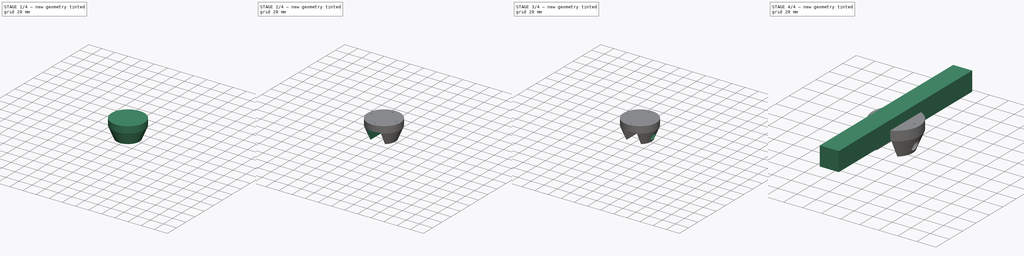
[diagram: build sequence overview — one tinted view per stage of 4, left to right]
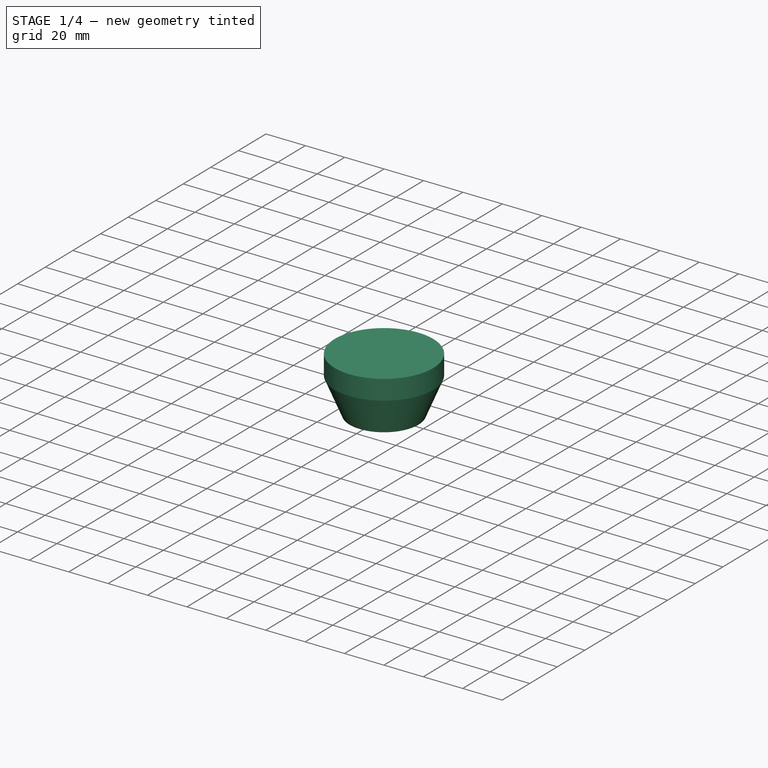
[diagram: stage 1 of 4 — iso view after this stage's code; geometry added in this stage tinted green]
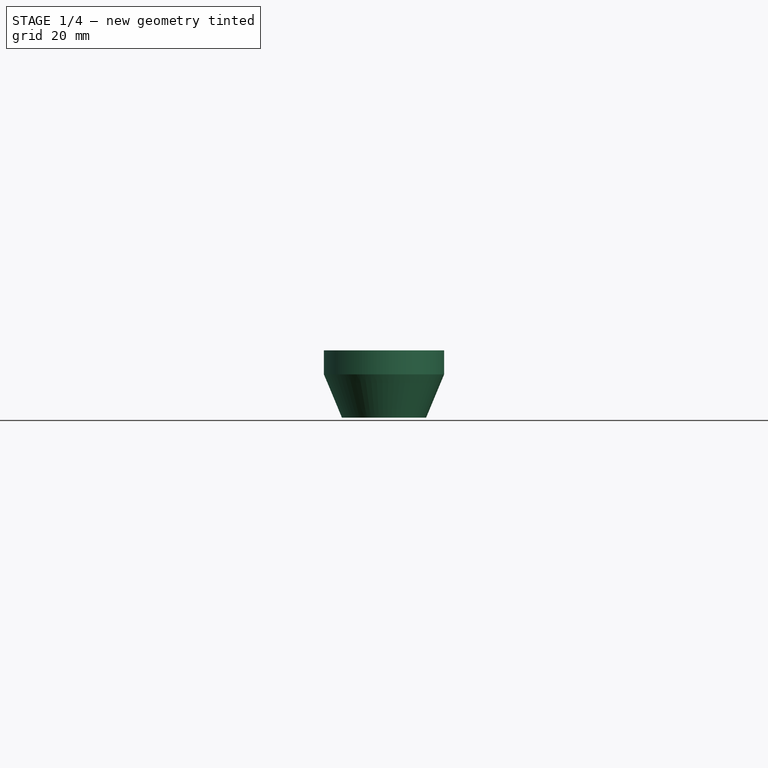
[diagram: stage 1 of 4 — front view after this stage's code; geometry added in this stage tinted green]
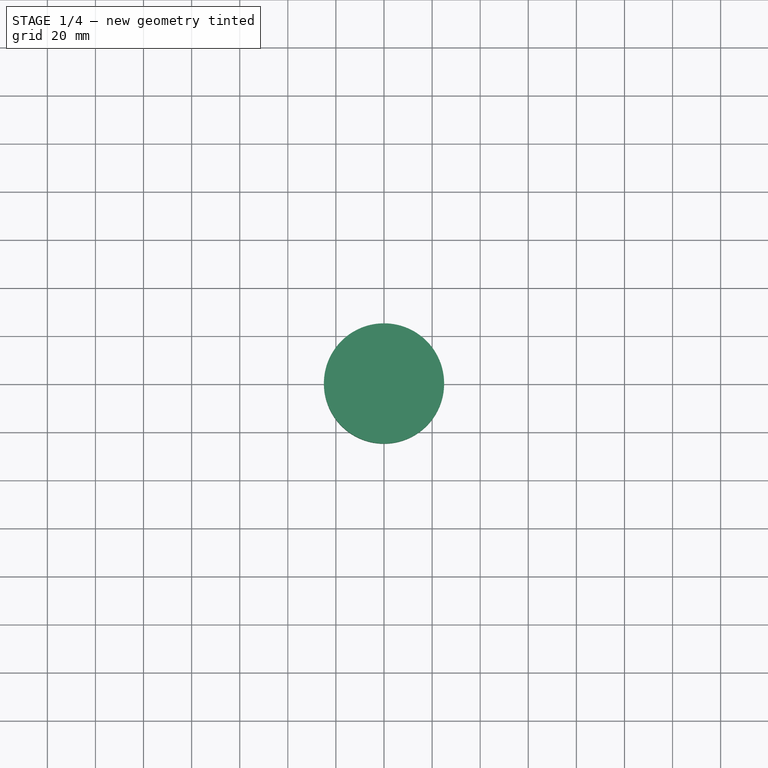
[diagram: stage 1 of 4 — top view after this stage's code; geometry added in this stage tinted green]
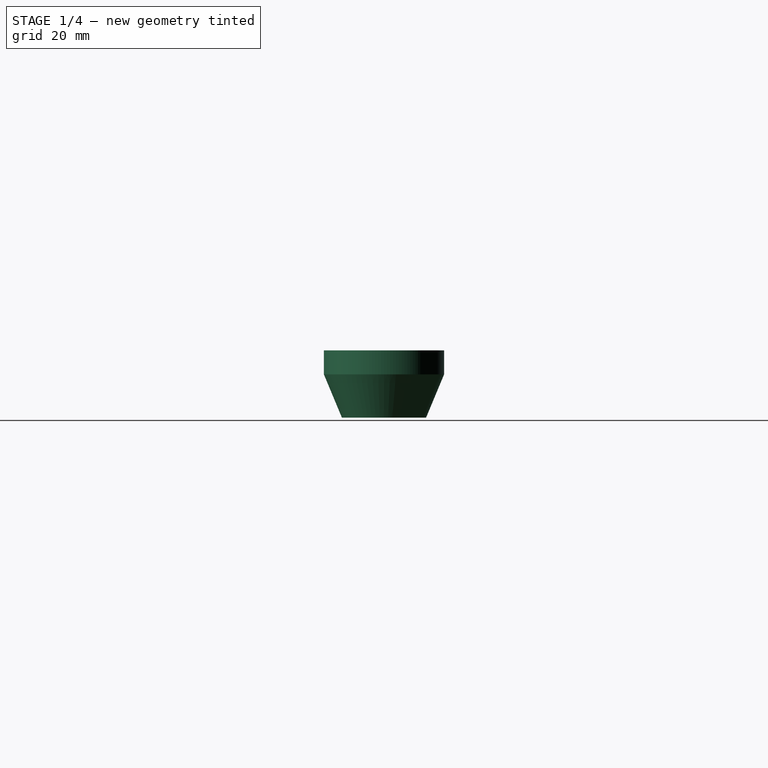
[diagram: stage 1 of 4 — right view after this stage's code; geometry added in this stage tinted green]
FCSTD DOCUMENT  (FreeCAD 0.21R33771 (Git))
Label: keyboard_chair_attachment_rev1
License: All rights reserved
LicenseURL: https://en.wikipedia.org/wiki/All_rights_reserved
objects: Sketcher::SketchObject×10, PartDesign::Plane×8, PartDesign::CoordinateSystem×6, PartDesign::Pocket×6, App::DocumentObjectGroup×3, App::Part×3, PartDesign::Pad×2, PartDesign::Body×2, App::Link×2, App::FeaturePython×1, PartDesign::AdditiveLoft×1
note: 44 computed .brp shape members not serialized (recipe doc carries the construction recipe); baked Part::Feature solids carry a one-line shape summary decoded from their .brp

FEATURE [PartDesign::Body] Extruded_Bar_Body  label="Extruded Bar Body"
  Group = -> [Sketch,Pad]
  Origin = -> Origin002
  Tip = -> Pad
FEATURE [PartDesign::CoordinateSystem] LCS_003
  AttacherType = Attacher::AttachEngine3D
  MapMode = 2
  Support = -> [X_Axis004]
FEATURE [PartDesign::Plane] DatumPlane  label="Keyboard Mount Top"
  Length = 60
  MapMode = 5
  ResizeMode = 0
  Support = -> [XY_Plane004]
  Width = 60
FEATURE [PartDesign::Plane] DatumPlane001  label="Keyboard Mount Mid"
  AttachmentOffset = pos=(0,0,-10) rot=(0,0,1;0rad)
  Length = 60
  MapMode = 5
  Placement = pos=(0,0,-10) rot=(0,0,1;0rad)
  ResizeMode = 0
  Support = -> [DatumPlane]
  Width = 60
FEATURE [PartDesign::Plane] DatumPlane002  label="Keyboard Mount Bottom"
  AttachmentOffset = pos=(0,0,-18) rot=(0,0,1;0rad)
  Length = 60
  MapMode = 5
  Placement = pos=(0,0,-28) rot=(0,0,1;0rad)
  ResizeMode = 0
  Support = -> [DatumPlane001]
  Width = 60
FEATURE [Sketcher::SketchObject] Sketch001
  FullyConstrained = true
  MapMode = 5
  Support = -> [DatumPlane]
  sketch-geometry (1):
    g0: Circle CenterX=0 CenterY=0 CenterZ=0 NormalX=0 NormalY=0 NormalZ=1 AngleXU=0 Radius=25
  constraints (2):
    c: Coincident(g0,g-1)
    c: Diameter(g0) = 50
FEATURE [PartDesign::Pad] Pad001  label="Keyboard Mount Upper Section"
  Direction = (0,0,1)
  Length = 10
  Length2 = 10
  Profile = -> Sketch001
  ReferenceAxis = -> Sketch001 [N_Axis]
  Type = 3
  UpToFace = -> DatumPlane001
FEATURE [Sketcher::SketchObject] Sketch002
  FullyConstrained = true
  MapMode = 5
  Placement = pos=(0,0,-10) rot=(0,0,1;0rad)
  Support = -> [DatumPlane001]
  expr: Constraints[1] = 50
  sketch-geometry (1):
    g0: Circle CenterX=0 CenterY=0 CenterZ=0 NormalX=0 NormalY=0 NormalZ=1 AngleXU=0 Radius=25
  constraints (2):
    c: Coincident(g0,g-1)
    c: Diameter(g0) = 50
FEATURE [Sketcher::SketchObject] Sketch003
  FullyConstrained = true
  MapMode = 5
  Placement = pos=(0,0,-28) rot=(0,0,1;0rad)
  Support = -> [DatumPlane002]
  sketch-geometry (1):
    g0: Circle CenterX=0 CenterY=0 CenterZ=0 NormalX=0 NormalY=0 NormalZ=1 AngleXU=0 Radius=17.5
  constraints (2):
    c: Coincident(g0,g-1)
    c: Diameter(g0) = 35
FEATURE [PartDesign::AdditiveLoft] AdditiveLoft  label="Keyboard Mount Lower Section"
  BaseFeature = -> Pad001
  Closed = false
  Profile = -> Sketch003
  Ruled = false
  Sections = -> [Sketch002]
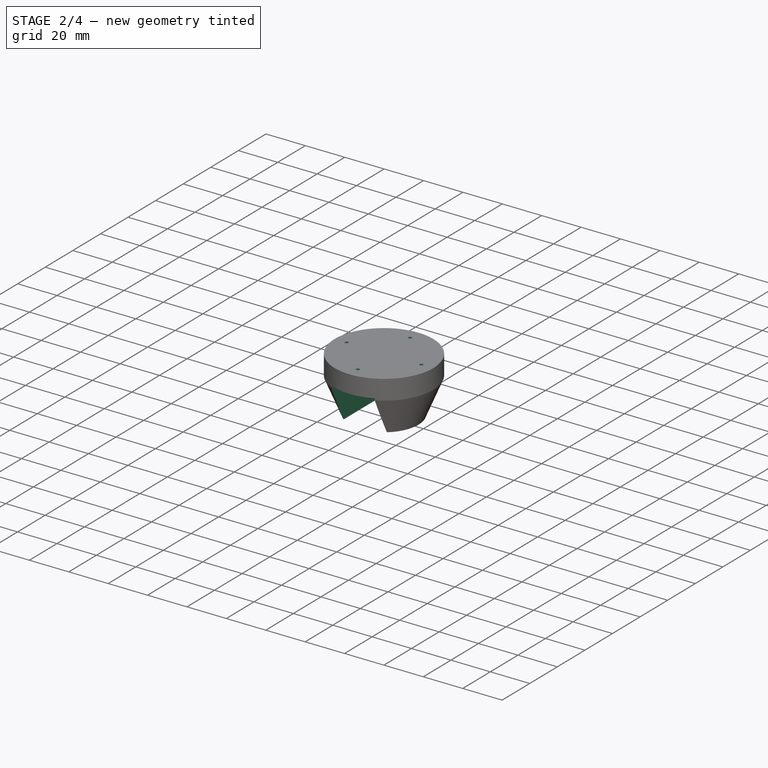
[diagram: stage 2 of 4 — iso view after this stage's code; geometry added in this stage tinted green]
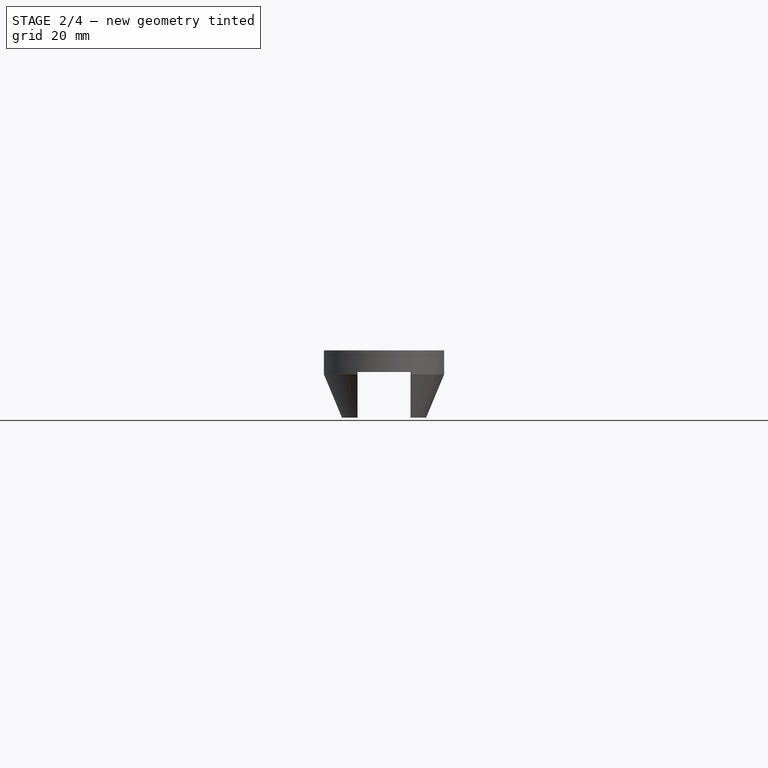
[diagram: stage 2 of 4 — front view after this stage's code; geometry added in this stage tinted green]
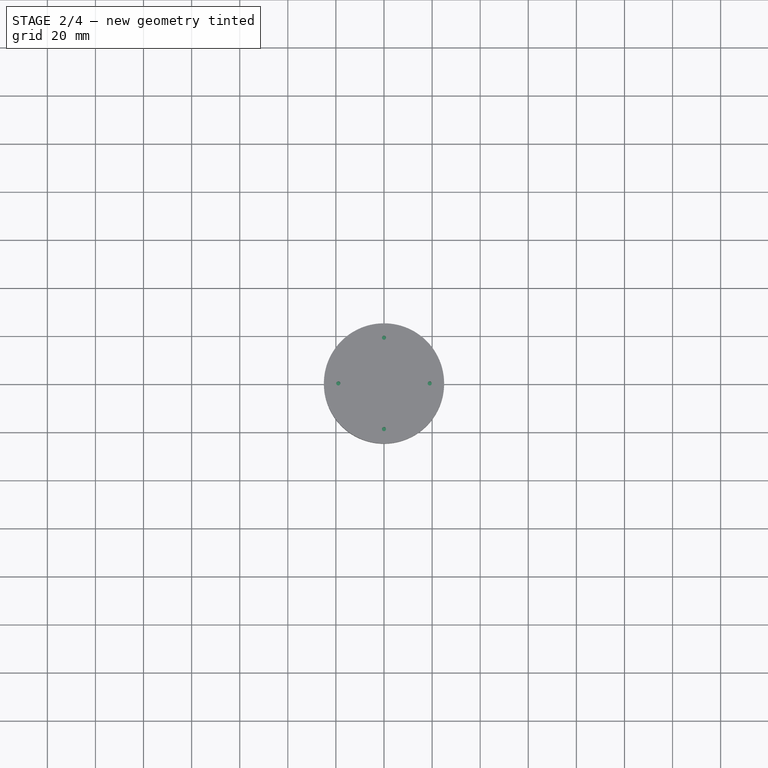
[diagram: stage 2 of 4 — top view after this stage's code; geometry added in this stage tinted green]
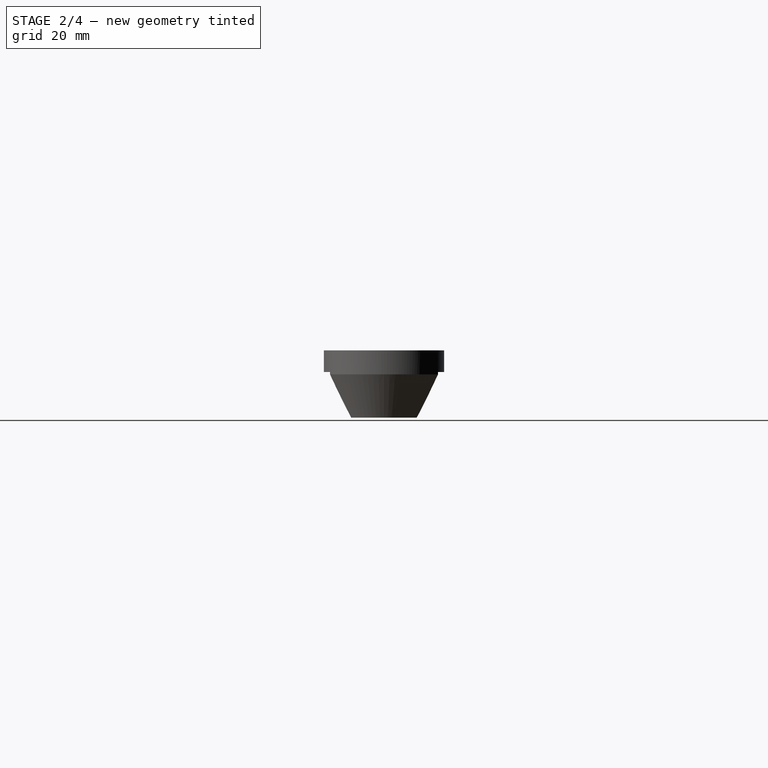
[diagram: stage 2 of 4 — right view after this stage's code; geometry added in this stage tinted green]
FEATURE [PartDesign::Plane] DatumPlane003  label="Keyboard Mount Tenting Puck Hole Depth"
  AttachmentOffset = pos=(0,0,-8) rot=(0,0,1;0rad)
  Length = 60
  MapMode = 5
  Placement = pos=(0,0,-8) rot=(0,0,1;0rad)
  ResizeMode = 0
  Support = -> [DatumPlane]
  Width = 60
FEATURE [Sketcher::SketchObject] Sketch004
  FullyConstrained = true
  MapMode = 5
  Support = -> [DatumPlane]
  sketch-geometry (5):
    g0: Circle CenterX=0 CenterY=0 CenterZ=0 NormalX=0 NormalY=0 NormalZ=1 AngleXU=0 Radius=19
    g1: Circle CenterX=0 CenterY=19 CenterZ=0 NormalX=0 NormalY=0 NormalZ=1 AngleXU=0 Radius=0.85
    g2: Circle CenterX=19 CenterY=0 CenterZ=0 NormalX=0 NormalY=0 NormalZ=1 AngleXU=0 Radius=0.85
    g3: Circle CenterX=0 CenterY=-19 CenterZ=0 NormalX=0 NormalY=0 NormalZ=1 AngleXU=0 Radius=0.85
    g4: Circle CenterX=-19 CenterY=0 CenterZ=0 NormalX=0 NormalY=0 NormalZ=1 AngleXU=0 Radius=0.85
  constraints (14):
    c: Coincident(g0,g-1)
    c: PointOnObject(g1,g0)
    c: PointOnObject(g2,g0)
    c: PointOnObject(g3,g0)
    c: PointOnObject(g4,g0)
    c: PointOnObject(g4,g-1)
    c: PointOnObject(g1,g-2)
    c: PointOnObject(g2,g-1)
    c: PointOnObject(g3,g-2)
    c: Equal(g1,g2)
    c: Equal(g2,g3)
    c: Equal(g3,g4)
    c: Diameter(g1) = 1.7
    c: Diameter(g0) = 38
FEATURE [PartDesign::Pocket] Pocket  label="Keyboard Mount Tenting Puck Holes"
  BaseFeature = -> AdditiveLoft
  Direction = (0,0,-1)
  Length = 0
  Length2 = 5
  Profile = -> Sketch004
  ReferenceAxis = -> Sketch004 [N_Axis]
  Type = 3
  UpToFace = -> DatumPlane003 [Plane]
FEATURE [Sketcher::SketchObject] Sketch005
  FullyConstrained = true
  MapMode = 5
  Placement = pos=(0,0,0) rot=(1,0,0;1.5708rad)
  Support = -> [XZ_Plane004]
  expr: .Constraints.height = Variables.extruded_bar_height + 2
  expr: .Constraints.width = Variables.extruded_bar_width + 2
  sketch-geometry (5):
    g0: LineSegment StartX=-11 StartY=-31 StartZ=0 EndX=-11 EndY=-9 EndZ=0
    g1: LineSegment StartX=-11 StartY=-9 StartZ=0 EndX=11 EndY=-9 EndZ=0
    g2: LineSegment StartX=11 StartY=-9 StartZ=0 EndX=11 EndY=-31 EndZ=0
    g3: LineSegment StartX=11 StartY=-31 StartZ=0 EndX=-11 EndY=-31 EndZ=0
    g4: GeomPoint X=0 Y=-20 Z=0
  constraints (13):
    c: Coincident(g0,g1)
    c: Coincident(g1,g2)
    c: Coincident(g2,g3)
    c: Coincident(g3,g0)
    c: Horizontal(g1)
    c: Horizontal(g3)
    c: Vertical(g0)
    c: Vertical(g2)
    c: Symmetric(g1,g0,g4)
    c: PointOnObject(g4,g-2)
    c: DistanceX(g1,g1) = 22  'width'
    c: DistanceY(g2,g2) = 22  'height'
    c: DistanceY(g4,g-1) = 20  'offset'
FEATURE [PartDesign::Pocket] Pocket001  label="Keyboard Mount Bar Cutout"
  BaseFeature = -> Pocket
  Direction = (0,1,2e-16)
  Length = 5
  Length2 = 5
  Midplane = true
  Profile = -> Sketch005
  ReferenceAxis = -> Sketch005 [N_Axis]
  Type = 1
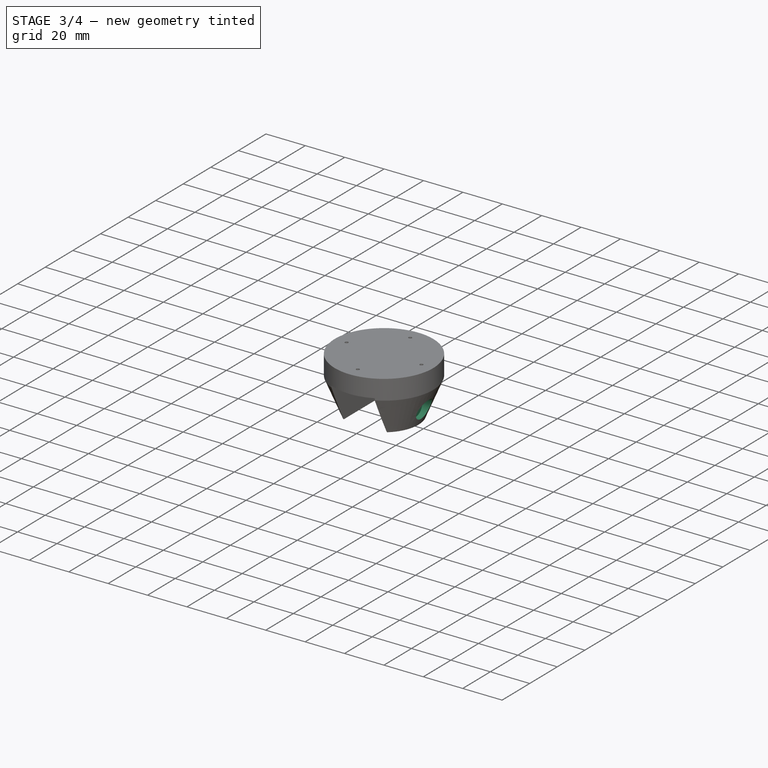
[diagram: stage 3 of 4 — iso view after this stage's code; geometry added in this stage tinted green]
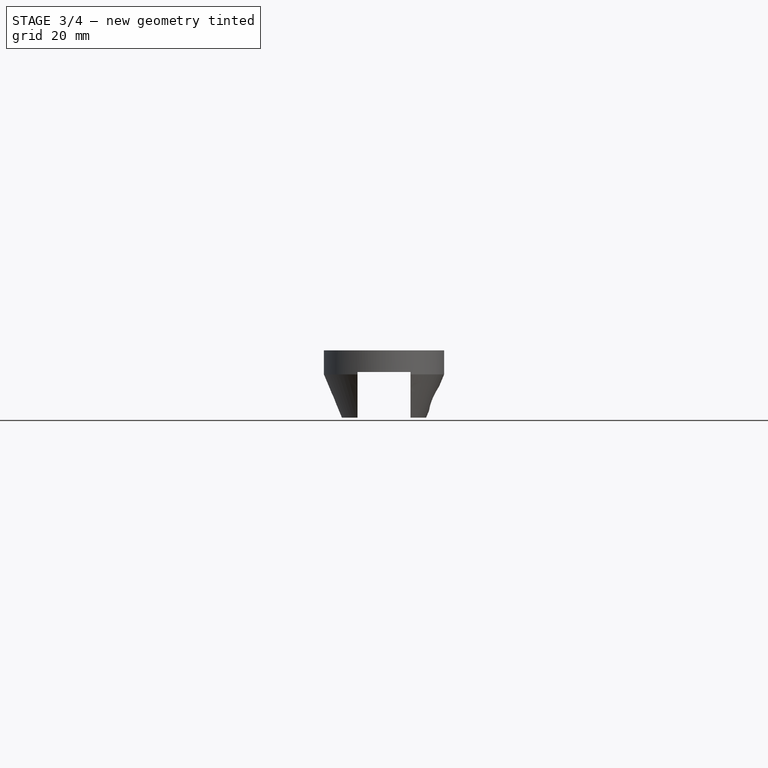
[diagram: stage 3 of 4 — front view after this stage's code; geometry added in this stage tinted green]
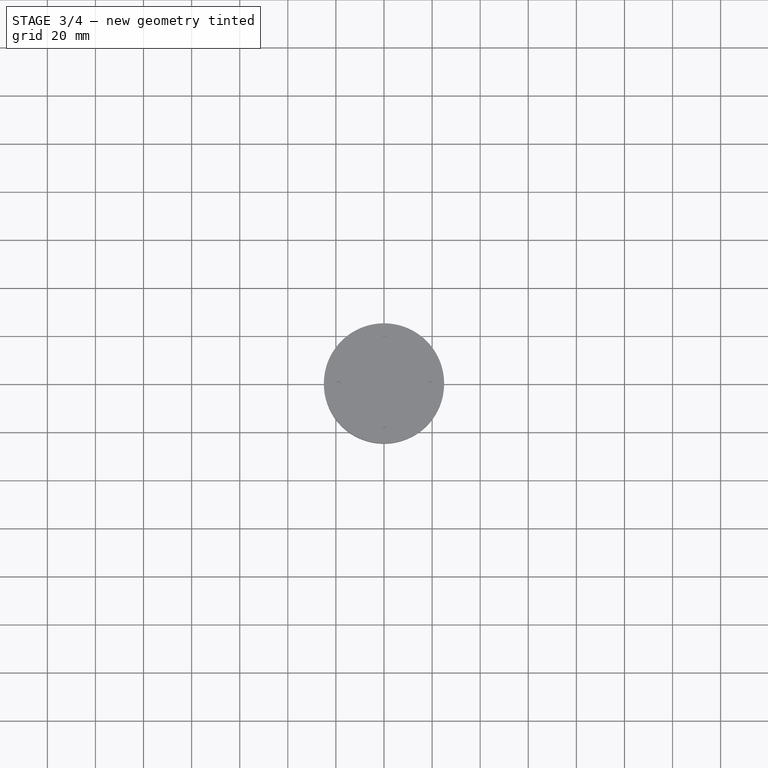
[diagram: stage 3 of 4 — top view after this stage's code; geometry added in this stage tinted green]
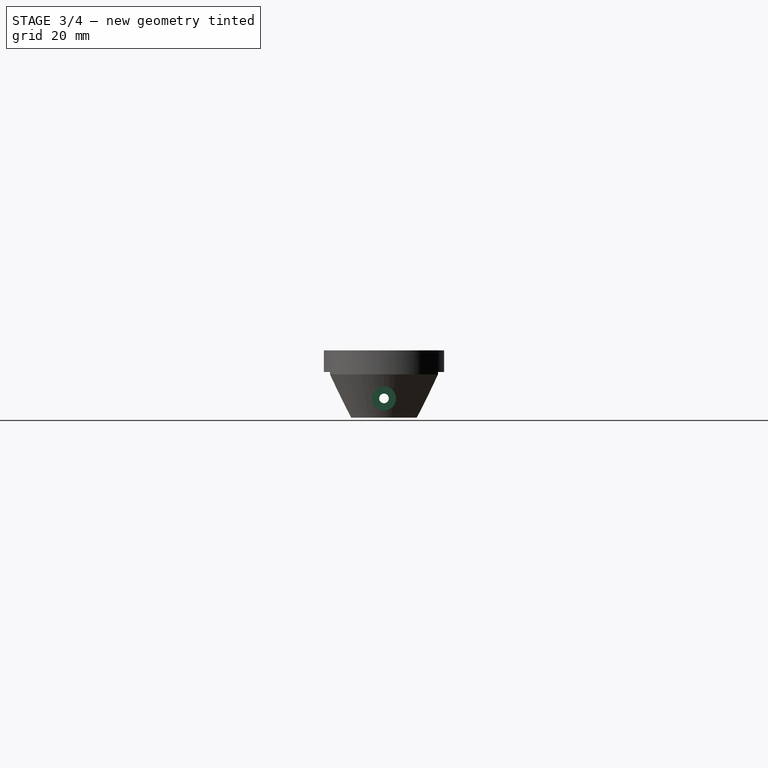
[diagram: stage 3 of 4 — right view after this stage's code; geometry added in this stage tinted green]
FEATURE [PartDesign::Plane] DatumPlane004  label="Keyboard Mount Bar Side Right"
  AttachmentOffset = pos=(0,0,11) rot=(0,0,1;0rad)
  Length = 60.2956
  MapMode = 5
  Placement = pos=(11,-2.4e-15,2.4e-15) rot=(0.57735,0.57735,0.57735;2.0944rad)
  ResizeMode = 0
  Support = -> [YZ_Plane004]
  Width = 63.2956
  expr: .AttachmentOffset.Base.z = Sketch005.Constraints.width / 2
FEATURE [Sketcher::SketchObject] Sketch006
  FullyConstrained = true
  MapMode = 5
  Placement = pos=(11,-2.4e-15,2.4e-15) rot=(0.57735,0.57735,0.57735;2.0944rad)
  Support = -> [DatumPlane004]
  expr: .Constraints.offset = Sketch005.Constraints.offset
  sketch-geometry (1):
    g0: Circle CenterX=0 CenterY=-20 CenterZ=0 NormalX=0 NormalY=0 NormalZ=1 AngleXU=0 Radius=2
  constraints (3):
    c: PointOnObject(g0,g-2)
    c: DistanceY(g0,g-1) = 20  'offset'
    c: Diameter(g0) = 4  'hole_diam'
FEATURE [PartDesign::Pocket] Pocket002  label="Keyboard Mount Bar Screw Cutout Right"
  BaseFeature = -> Pocket001
  Direction = (-1,1e-16,-1e-16)
  Length = 5
  Length2 = 5
  Profile = -> Sketch006
  ReferenceAxis = -> Sketch006 [N_Axis]
  Reversed = true
  Type = 1
FEATURE [PartDesign::Plane] DatumPlane005  label="Keyboard Mount Bar Mount Screw Head Right"
  AttachmentOffset = pos=(0,0,5) rot=(0,0,1;0rad)
  Length = 60.2956
  MapMode = 5
  Placement = pos=(16,-3e-15,3e-15) rot=(0.57735,0.57735,0.57735;2.0944rad)
  ResizeMode = 0
  Support = -> [DatumPlane004]
  Width = 63.2956
FEATURE [Sketcher::SketchObject] Sketch007
  FullyConstrained = true
  MapMode = 5
  Placement = pos=(16,-3e-15,3e-15) rot=(0.57735,0.57735,0.57735;2.0944rad)
  Support = -> [DatumPlane005]
  expr: .Constraints.offset = Sketch005.Constraints.offset
  sketch-geometry (1):
    g0: Circle CenterX=0 CenterY=-20 CenterZ=0 NormalX=0 NormalY=0 NormalZ=1 AngleXU=0 Radius=5
  constraints (3):
    c: PointOnObject(g0,g-2)
    c: DistanceY(g0,g-1) = 20  'offset'
    c: Diameter(g0) = 10  'hole_diam'
FEATURE [PartDesign::Pocket] Pocket003  label="Keyboard Mount Bar Screw Head Cutout Right"
  BaseFeature = -> Pocket002
  Direction = (-1,0,0)
  Length = 5
  Length2 = 5
  Profile = -> Sketch007
  ReferenceAxis = -> Sketch007 [N_Axis]
  Reversed = true
  Type = 1
FEATURE [PartDesign::CoordinateSystem] Local_CS  label="Keyboard Mount Body Bar"
  AttacherType = Attacher::AttachEngine3D
  AttachmentOffset = pos=(0,0,-20) rot=(0,0,1;0rad)
  MapMode = 5
  Placement = pos=(0,0,-20) rot=(0,0,1;0rad)
  Support = -> [LCS_003]
  expr: .AttachmentOffset.Base.z = -Sketch005.Constraints.offset
FEATURE [PartDesign::CoordinateSystem] Keyboard_Mount_Bar  label="Keyboard Mount Bar"
  AttacherType = Attacher::AttachEngine3D
  MapMode = 5
  Placement = pos=(0,0,-20) rot=(0,0,1;0rad)
  Support = -> [Local_CS]
FEATURE [PartDesign::CoordinateSystem] LCS_1  label="Extruded Bar Keyboard"
  AttacherType = Attacher::AttachEngine3D
  AttachmentOffset = pos=(0,80,0) rot=(0,0,1;0rad)
  MapMode = 5
  Placement = pos=(0,80,0) rot=(0,0,1;0rad)
  Support = -> [LCS_0]
FEATURE [App::Part] Extruded_Bar  label="Extruded Bar"
  Group = -> [LCS_0,Extruded_Bar_Body,LCS_1]
  Origin = -> Origin001
FEATURE [App::Link] Extruded_Bar_Ass  label="Extruded Bar Ass"
  AttachedBy = #LCS_0
  AttachedTo = Parent Assembly#LCS_Origin
  LinkedObject = -> Extruded_Bar
  SolverId = Asm4EE
  expr: Placement = LCS_Origin.Placement * AttachmentOffset * LCS_0.Placement ^ -1
FEATURE [App::Link] Keyboard_Mount_Ass  label="Keyboard Mount Ass"
  AttachedBy = #Keyboard_Mount_Bar
  AttachedTo = Extruded_Bar_Ass#LCS_1
  LinkPlacement = pos=(0,80,20) rot=(0,0,1;0rad)
  LinkedObject = -> Keyboard_Mount
  Placement = pos=(0,80,20) rot=(0,0,1;0rad)
  SolverId = Asm4EE
  expr: Placement = Extruded_Bar_Ass.Placement * LCS_1.Placement * AttachmentOffset * Keyboard_Mount_Bar.Placement ^ -1
FEATURE [App::Part] Assembly
  AssemblyType = Part::Link
  Group = -> [LCS_Origin,Constraints,Variables,Configurations,Extruded_Bar_Ass,Keyboard_Mount_Ass]
  Origin = -> Origin
  Type = Assembly
FEATURE [PartDesign::Plane] DatumPlane006  label="Keyboard Mount Bar Side Left"
  AttachmentOffset = pos=(0,0,-11) rot=(0,0,1;0rad)
  Length = 60.2956
  MapMode = 5
  Placement = pos=(-11,2.4e-15,-2.4e-15) rot=(0.57735,0.57735,0.57735;2.0944rad)
  ResizeMode = 0
  Support = -> [YZ_Plane004]
  Width = 63.2956
  expr: .AttachmentOffset.Base.z = -Sketch005.Constraints.width / 2
FEATURE [PartDesign::Plane] DatumPlane007  label="Keyboard Mount Bar Mount Screw Head Left"
  AttachmentOffset = pos=(0,0,-5) rot=(0,0,1;0rad)
  Length = 60.2956
  MapMode = 5
  Placement = pos=(-16,3e-15,-3e-15) rot=(0.57735,0.57735,0.57735;2.0944rad)
  ResizeMode = 0
  Support = -> [DatumPlane006]
  Width = 63.2956
FEATURE [Sketcher::SketchObject] Sketch008
  FullyConstrained = true
  MapMode = 5
  Placement = pos=(-11,2.4e-15,-2.4e-15) rot=(0.57735,0.57735,0.57735;2.0944rad)
  Support = -> [DatumPlane006]
  expr: Constraints[1] = Sketch006.Constraints.hole_diam
  expr: Constraints[2] = Sketch006.Constraints.offset
  sketch-geometry (1):
    g0: Circle CenterX=0 CenterY=-20 CenterZ=0 NormalX=0 NormalY=0 NormalZ=1 AngleXU=0 Radius=2
  constraints (3):
    c: PointOnObject(g0,g-2)
    c: Diameter(g0) = 4
    c: DistanceY(g0,g-1) = 20
FEATURE [PartDesign::Pocket] Pocket004  label="Keyboard Mount Bar Screw Cutout Left"
  BaseFeature = -> Pocket003
  Direction = (-1,1e-16,-1e-16)
  Length = 5
  Length2 = 5
  Profile = -> Sketch008
  ReferenceAxis = -> Sketch008 [N_Axis]
  Type = 1
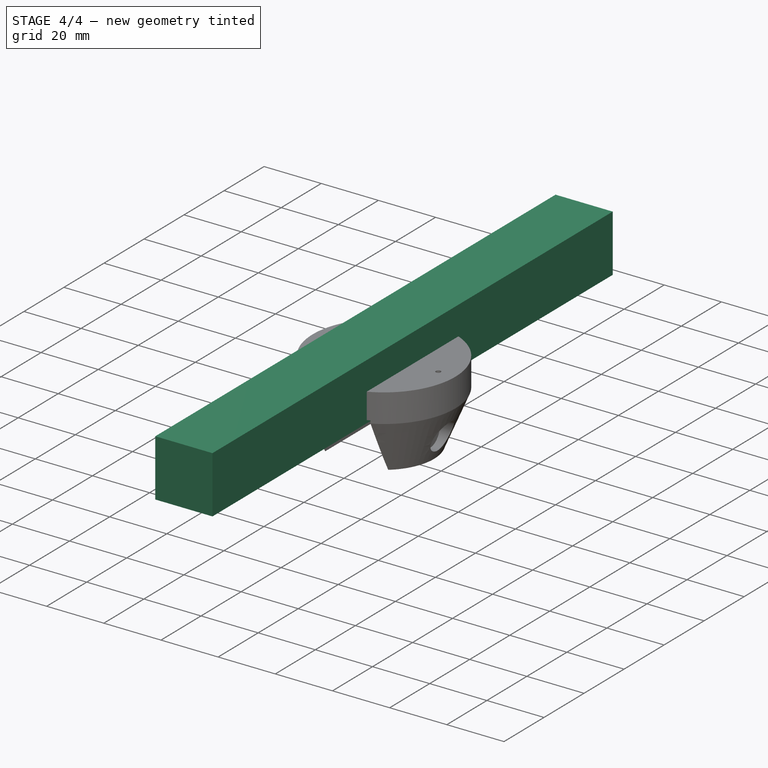
[diagram: stage 4 of 4 — iso view after this stage's code; geometry added in this stage tinted green]
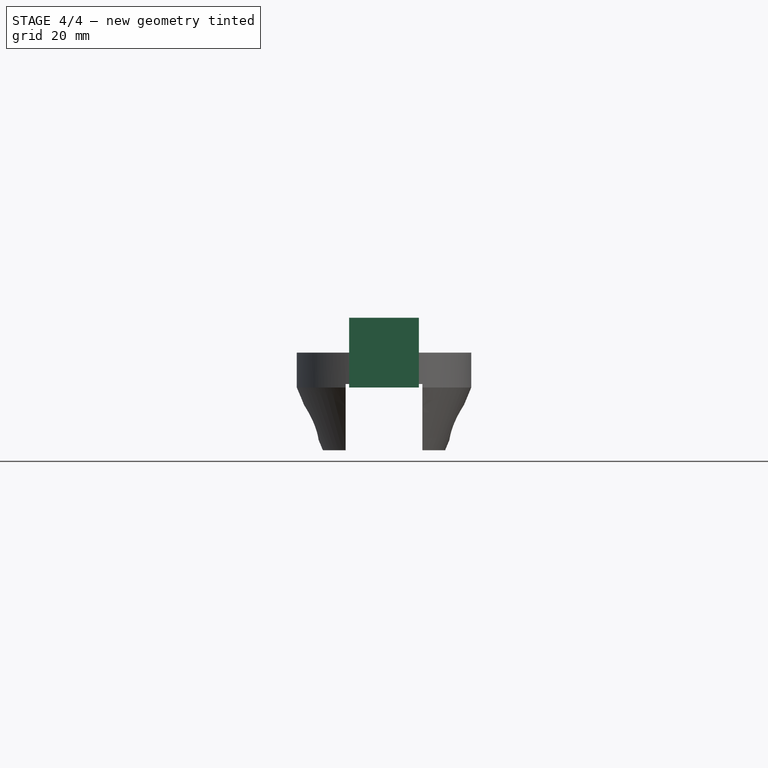
[diagram: stage 4 of 4 — front view after this stage's code; geometry added in this stage tinted green]
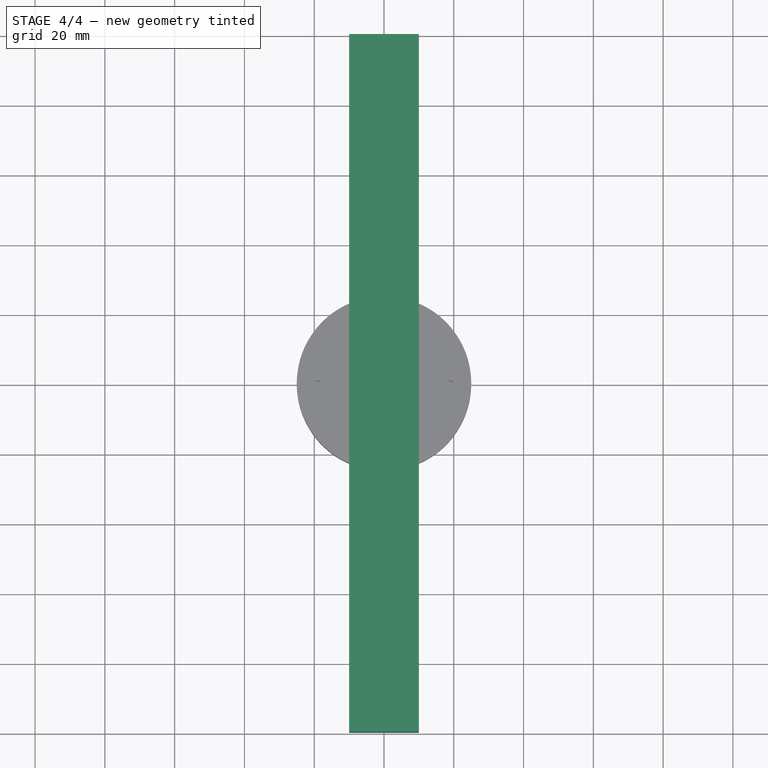
[diagram: stage 4 of 4 — top view after this stage's code; geometry added in this stage tinted green]
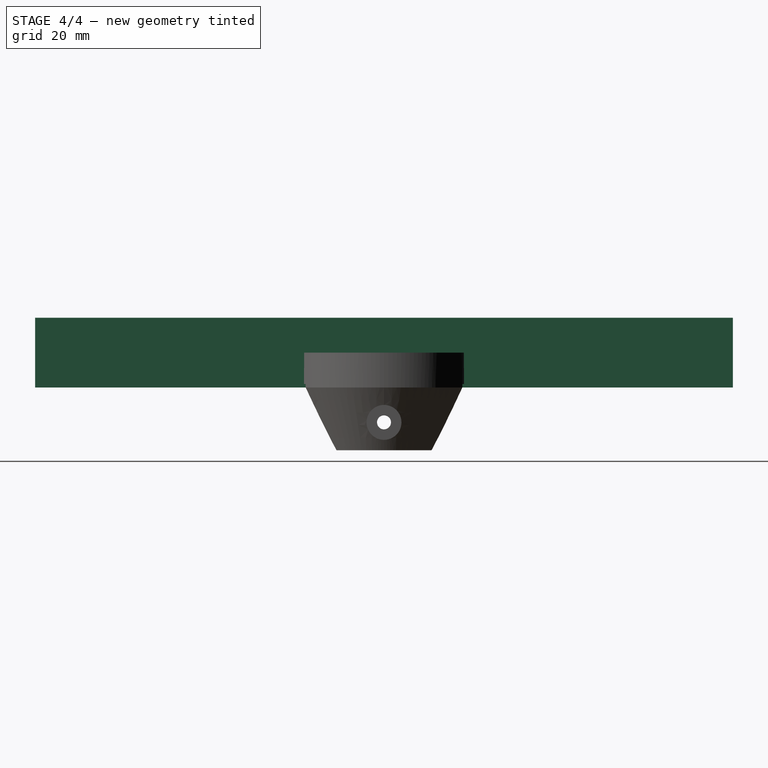
[diagram: stage 4 of 4 — right view after this stage's code; geometry added in this stage tinted green]
FEATURE [PartDesign::CoordinateSystem] LCS_Origin
  AttacherType = Attacher::AttachEngine3D
  MapMode = 2
  Support = -> [X_Axis]
FEATURE [App::DocumentObjectGroup] Constraints
FEATURE [App::FeaturePython] Variables  # WARN: FeaturePython — macro-defined, semantics opaque (R4)
  Type = App::PropertyContainer
  extruded_bar_height = 20
  extruded_bar_length = 200
  extruded_bar_width = 20
FEATURE [App::DocumentObjectGroup] Configurations
FEATURE [PartDesign::CoordinateSystem] LCS_0  label="Extruded Bar Centre"
  AttacherType = Attacher::AttachEngine3D
  MapMode = 2
  Support = -> [X_Axis001]
FEATURE [Sketcher::SketchObject] Sketch  label="Extruded Bar Extrusion"
  FullyConstrained = true
  MapMode = 5
  Placement = pos=(0,0,0) rot=(1,0,0;1.5708rad)
  Support = -> [XZ_Plane002]
  expr: Constraints[10] = Variables.extruded_bar_height
  expr: Constraints[11] = Variables.extruded_bar_width
  sketch-geometry (5):
    g0: LineSegment StartX=-10 StartY=-10 StartZ=0 EndX=-10 EndY=10 EndZ=0
    g1: LineSegment StartX=-10 StartY=10 StartZ=0 EndX=10 EndY=10 EndZ=0
    g2: LineSegment StartX=10 StartY=10 StartZ=0 EndX=10 EndY=-10 EndZ=0
    g3: LineSegment StartX=10 StartY=-10 StartZ=0 EndX=-10 EndY=-10 EndZ=0
    g4: GeomPoint X=0 Y=0 Z=0
  constraints (12):
    c: Coincident(g0,g1)
    c: Coincident(g1,g2)
    c: Coincident(g2,g3)
    c: Coincident(g3,g0)
    c: Horizontal(g1)
    c: Horizontal(g3)
    c: Vertical(g0)
    c: Vertical(g2)
    c: Symmetric(g1,g0,g4)
    c: Coincident(g4,g-1)
    c: DistanceY(g2,g2) = 20
    c: DistanceX(g1,g1) = 20
FEATURE [PartDesign::Pad] Pad  label="Extruded Bar Outer"
  Direction = (0,-1,2e-16)
  Length = 200
  Length2 = 10
  Midplane = true
  Placement = pos=(0,0,0) rot=(1,0,0;1.5708rad)
  Profile = -> Sketch
  ReferenceAxis = -> Sketch [N_Axis]
  Type = 0
  expr: Length = Variables.extruded_bar_length
FEATURE [Sketcher::SketchObject] Sketch009
  FullyConstrained = true
  MapMode = 5
  Placement = pos=(-16,3e-15,-3e-15) rot=(0.57735,0.57735,0.57735;2.0944rad)
  Support = -> [DatumPlane007]
  expr: Constraints[1] = Sketch007.Constraints.offset
  expr: Constraints[2] = Sketch007.Constraints.hole_diam
  sketch-geometry (1):
    g0: Circle CenterX=0 CenterY=-20 CenterZ=0 NormalX=0 NormalY=0 NormalZ=1 AngleXU=0 Radius=5
  constraints (3):
    c: PointOnObject(g0,g-2)
    c: DistanceY(g0,g-1) = 20
    c: Diameter(g0) = 10
FEATURE [PartDesign::Pocket] Pocket005  label="Keyboard Mount Bar Screw Head Cutout Left"
  BaseFeature = -> Pocket004
  Direction = (-1,0,0)
  Length = 0
  Length2 = 5
  Profile = -> Sketch009
  ReferenceAxis = -> Sketch009 [N_Axis]
  Type = 1
FEATURE [PartDesign::Body] Keyboard_Mount_Body  label="Keyboard Mount Body"
  Group = -> [LCS_003,DatumPlane,DatumPlane001,DatumPlane002,Sketch001,Pad001,Sketch002,Sketch003,AdditiveLoft,DatumPlane003,Sketch004,Pocket,Sketch005,Pocket001,DatumPlane004,Sketch006,Pocket002,DatumPlane005,Sketch007,Pocket003,Local_CS,DatumPlane006,Sketch008,Pocket004,DatumPlane007,Sketch009,Pocket005]
  Origin = -> Origin004
  Tip = -> Pocket005
FEATURE [App::Part] Keyboard_Mount  label="Keyboard Mount"
  Group = -> [Keyboard_Mount_Body,Keyboard_Mount_Bar]
  Origin = -> Origin003
FEATURE [App::DocumentObjectGroup] Parts
  Group = -> [Extruded_Bar,Keyboard_Mount]
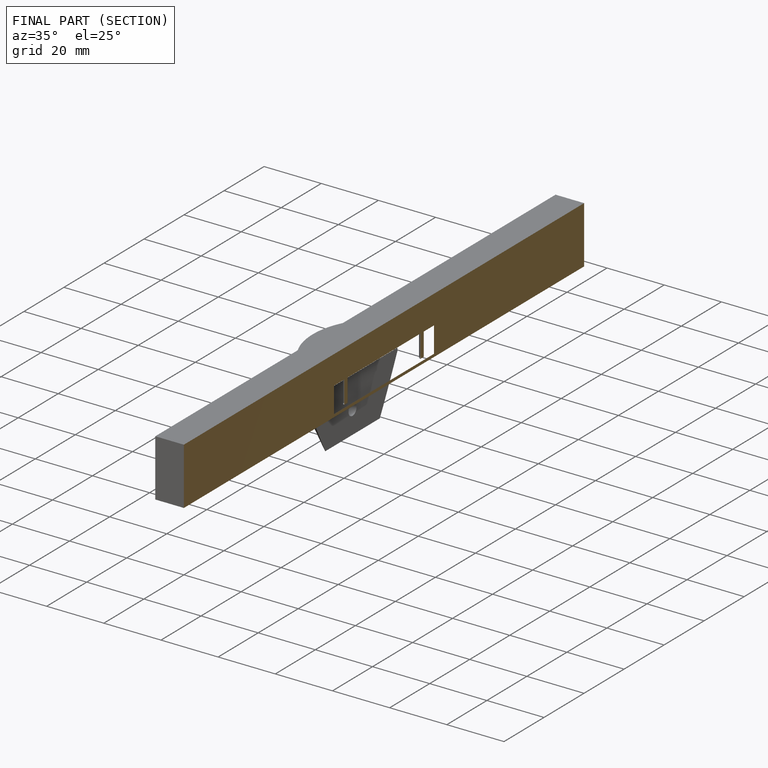
[diagram: finished part — half-section view (interior)]
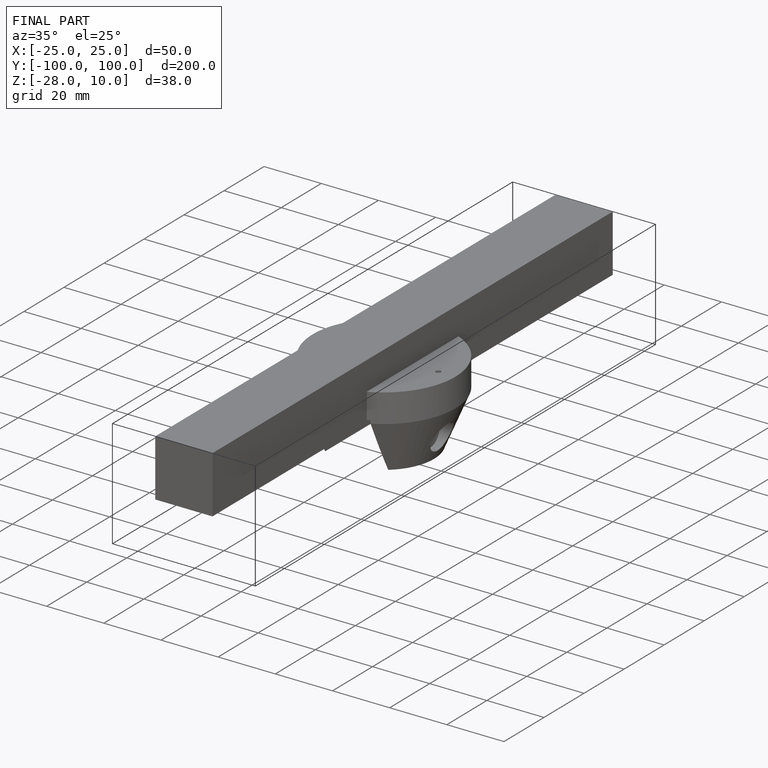
[diagram: finished part — iso view with bounding-box wireframe]
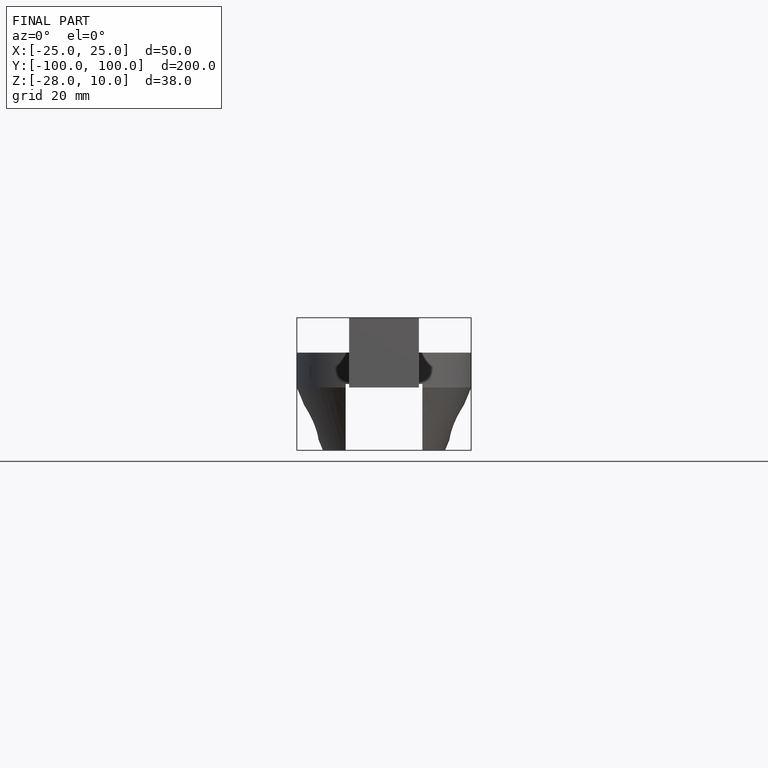
[diagram: finished part — front view with bounding-box wireframe]
